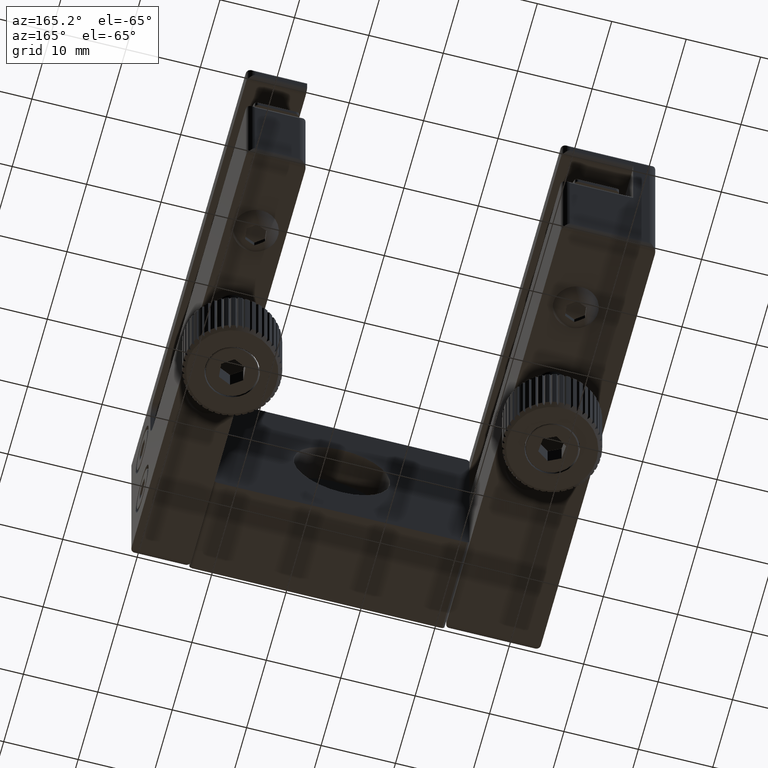
[diagram: clean part render]
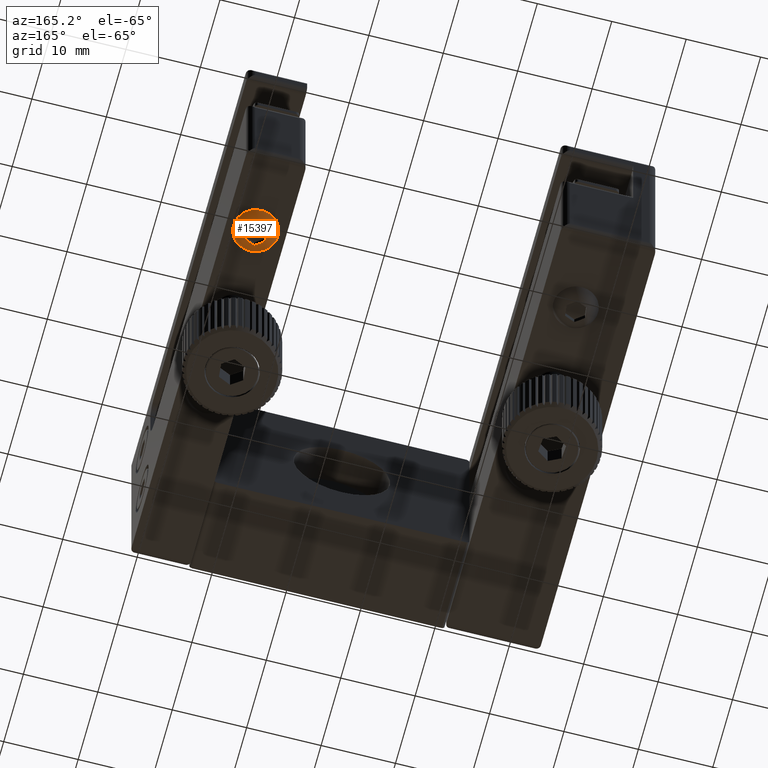
[diagram: same view with one face highlighted and labeled with its STEP entity id]
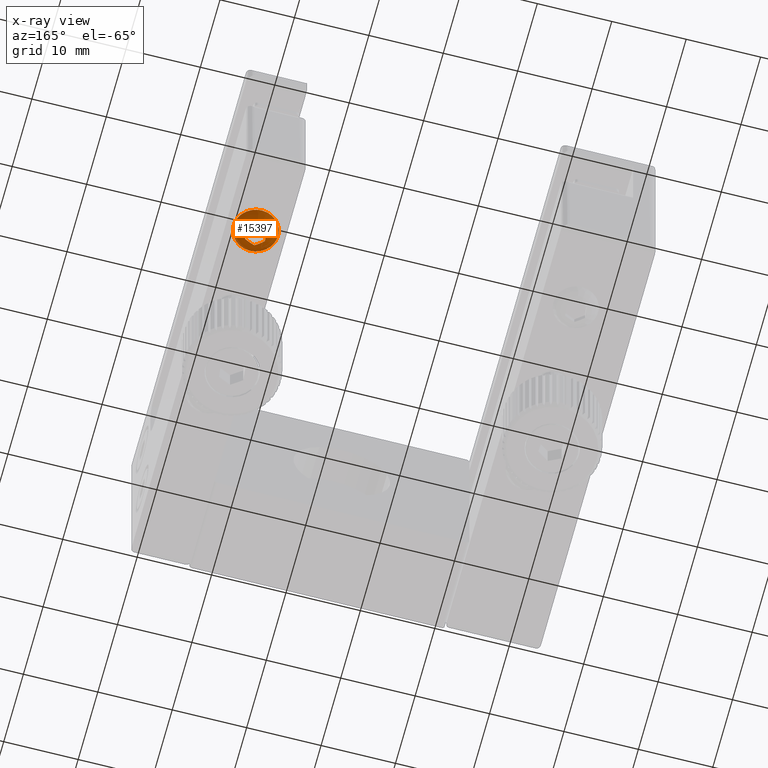
[diagram: x-ray of the same camera — body ghosted, the highlighted face saturated]
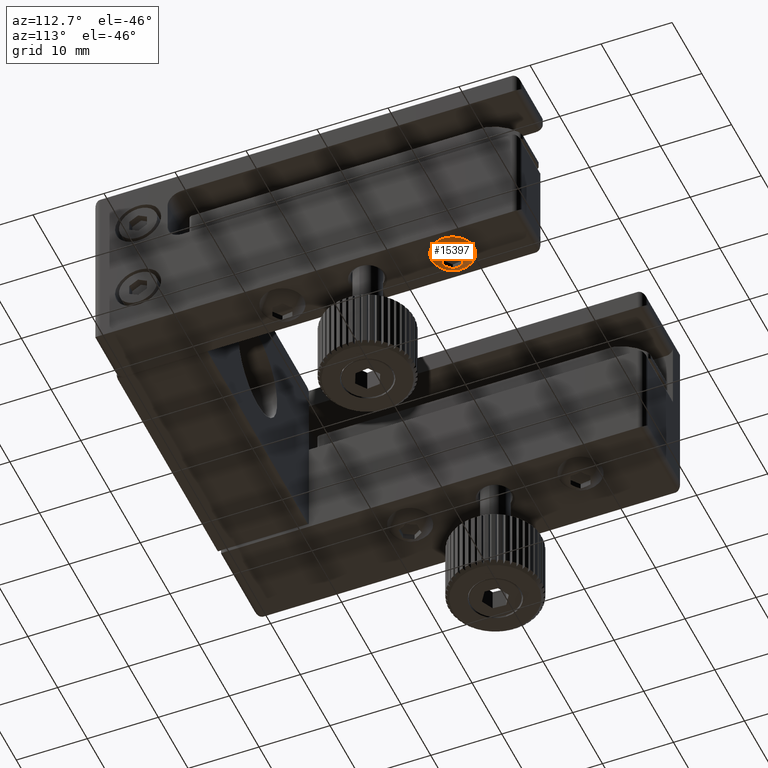
[diagram: same view with one face highlighted and labeled with its STEP entity id]
A machine part, auxiliary view. The second image highlights one B-rep face of the part: STEP entity #15397.
The next image is the same camera in x-ray: the body ghosted, the highlighted face saturated — about 0% of this face is hidden behind the body in this view.
A second angle (auxiliary view) of the same face is appended — the face is thin or edge-on in the first view.
In plain terms, the highlighted toroidal blend (fillet) surface has major radius 0.3867 mm and minor (blend) radius 3.0016 mm.
Its self-contained STEP definition (entity closure, byte-faithful):
#2880 = B_SPLINE_CURVE_WITH_KNOTS ( 'NONE', 3,
 ( #11307, #11298, #11306, #11309, #11310, #11311 ),
 .UNSPECIFIED., .F., .F.,
 ( 4, 2, 4 ),
 ( 2.321339971761600300E-007, 0.0007505610535786988400, 0.001500889973160225400 ),
 .UNSPECIFIED. ) ;
#2883 = B_SPLINE_CURVE_WITH_KNOTS ( 'NONE', 3,
 ( #11313, #11297, #11315, #11316, #11317, #11318 ),
 .UNSPECIFIED., .F., .F.,
 ( 4, 2, 4 ),
 ( 2.321339971838784900E-007, 0.0007505610535785110500, 0.001500889973159838300 ),
 .UNSPECIFIED. ) ;
#2886 = B_SPLINE_CURVE_WITH_KNOTS ( 'NONE', 3,
 ( #11308, #11312, #11321, #11322, #11323, #11324 ),
 .UNSPECIFIED., .F., .F.,
 ( 4, 2, 4 ),
 ( 0.01799585497660051100, 0.01874462994514625200, 0.01949340491369198900 ),
 .UNSPECIFIED. ) ;
#2889 = B_SPLINE_CURVE_WITH_KNOTS ( 'NONE', 3,
 ( #11314, #11320, #11327, #11328, #11329, #11330 ),
 .UNSPECIFIED., .F., .F.,
 ( 4, 2, 4 ),
 ( 2.321339971767755600E-007, 0.0007505610535785079100, 0.001500889973159839000 ),
 .UNSPECIFIED. ) ;
#2892 = B_SPLINE_CURVE_WITH_KNOTS ( 'NONE', 3,
 ( #11319, #11326, #11332, #11333, #11334, #11335 ),
 .UNSPECIFIED., .F., .F.,
 ( 4, 2, 4 ),
 ( 2.321339971802883900E-007, 0.0007505610535783091700, 0.001500889973159438100 ),
 .UNSPECIFIED. ) ;
#2894 = B_SPLINE_CURVE_WITH_KNOTS ( 'NONE', 3,
 ( #11325, #11331, #11338, #11339, #11340, #11341 ),
 .UNSPECIFIED., .F., .F.,
 ( 4, 2, 4 ),
 ( 0.01799585497660115600, 0.01874462994514657800, 0.01949340491369200300 ),
 .UNSPECIFIED. ) ;
#2944 = CARTESIAN_POINT ( 'NONE',  ( 15.85790100145254700, 39.25065930810993100, -14.21092417893698300 ) ) ;
#2947 = CARTESIAN_POINT ( 'NONE',  ( 16.05310175964706000, 40.73790396316849900, -14.21092417893698100 ) ) ;
#2950 = CARTESIAN_POINT ( 'NONE',  ( 14.86271048582098500, 41.65057510613221600, -14.21092417893451900 ) ) ;
#2952 = CARTESIAN_POINT ( 'NONE',  ( 13.47711845380037400, 41.07600159403737900, -14.21092417893697900 ) ) ;
#2953 = CARTESIAN_POINT ( 'NONE',  ( 13.28191769560585200, 39.58875693897879700, -14.21092417893698100 ) ) ;
#2955 = CARTESIAN_POINT ( 'NONE',  ( 14.47230896943194100, 38.67608579601508000, -14.21092417893944300 ) ) ;
#5685 = FACE_OUTER_BOUND ( 'NONE', #12946, .T. ) ;
#5688 = TOROIDAL_SURFACE ( 'NONE', #8379, 0.3867193823692916000, 3.001577696472475400 ) ;
#5689 = FACE_OUTER_BOUND ( 'NONE', #12943, .T. ) ;
#5865 = VERTEX_POINT ( 'NONE', #9441 ) ;
#7908 = CARTESIAN_POINT ( 'NONE',  ( 14.66750972762645900, 40.16333045107364800, -11.42343876473858600 ) ) ;
#7910 = DIRECTION ( 'NONE',  ( 0.0000000000000000000, 0.0000000000000000000, -1.000000000000000000 ) ) ;
#7914 = DIRECTION ( 'NONE',  ( 0.9237280213470681100, 0.3830490080632378300, 0.0000000000000000000 ) ) ;
#8379 = AXIS2_PLACEMENT_3D ( 'NONE', #7908, #7910, #7914 ) ;
#8586 = EDGE_CURVE ( 'NONE', #13436, #13438, #2880, .T. ) ;
#8587 = EDGE_CURVE ( 'NONE', #13434, #13436, #2883, .T. ) ;
#8588 = EDGE_CURVE ( 'NONE', #13438, #13439, #2886, .T. ) ;
#8589 = EDGE_CURVE ( 'NONE', #13439, #13440, #2889, .T. ) ;
#8590 = EDGE_CURVE ( 'NONE', #13440, #13441, #2892, .T. ) ;
#8591 = EDGE_CURVE ( 'NONE', #13441, #13434, #2894, .T. ) ;
#8592 = EDGE_CURVE ( 'NONE', #5865, #5865, #10252, .T. ) ;
#9441 = CARTESIAN_POINT ( 'NONE',  ( 17.43869379166766000, 41.31247747526335700, -12.89999999999999500 ) ) ;
#10252 = CIRCLE ( 'NONE', #15768, 2.999999999999994700 ) ;
#11297 = CARTESIAN_POINT ( 'NONE',  ( 15.89028136405914400, 39.49736696263413900, -14.26061240766815200 ) ) ;
#11298 = CARTESIAN_POINT ( 'NONE',  ( 15.85563684482426600, 40.88930000703172100, -14.26061240766816100 ) ) ;
#11306 = CARTESIAN_POINT ( 'NONE',  ( 15.65756723479007700, 41.04115966977541800, -14.28292376880803600 ) ) ;
#11307 = CARTESIAN_POINT ( 'NONE',  ( 16.05310175964706000, 40.73790396316849900, -14.21092417893698100 ) ) ;
#11308 = CARTESIAN_POINT ( 'NONE',  ( 14.86271048582098500, 41.65057510613221600, -14.21092417893451900 ) ) ;
#11309 = CARTESIAN_POINT ( 'NONE',  ( 15.26044616087835600, 41.34563178108135200, -14.28309420809237200 ) ) ;
#11310 = CARTESIAN_POINT ( 'NONE',  ( 15.06003458731871600, 41.49928702362689100, -14.26057697471693700 ) ) ;
#11311 = CARTESIAN_POINT ( 'NONE',  ( 14.86271048582098500, 41.65057510613221600, -14.21092417893451900 ) ) ;
#11312 = CARTESIAN_POINT ( 'NONE',  ( 14.63409011991699200, 41.55577143843046900, -14.26034760482045800 ) ) ;
#11313 = CARTESIAN_POINT ( 'NONE',  ( 15.85790100145254700, 39.25065930810993100, -14.21092417893698300 ) ) ;
#11314 = CARTESIAN_POINT ( 'NONE',  ( 13.47711845380037400, 41.07600159403737900, -14.21092417893697900 ) ) ;
#11315 = CARTESIAN_POINT ( 'NONE',  ( 15.92276088478822700, 39.74483010801323200, -14.28292376880803300 ) ) ;
#11316 = CARTESIAN_POINT ( 'NONE',  ( 15.98788093096716700, 40.24098310205175700, -14.28309420809238600 ) ) ;
#11317 = CARTESIAN_POINT ( 'NONE',  ( 16.02074448765643300, 40.49137223723952400, -14.26057697471696900 ) ) ;
#11318 = CARTESIAN_POINT ( 'NONE',  ( 16.05310175964706000, 40.73790396316849900, -14.21092417893698100 ) ) ;
#11319 = CARTESIAN_POINT ( 'NONE',  ( 13.28191769560585200, 39.58875693897879700, -14.21092417893698100 ) ) ;
#11320 = CARTESIAN_POINT ( 'NONE',  ( 13.44473809119377900, 40.82929393951317100, -14.26061240766815000 ) ) ;
#11321 = CARTESIAN_POINT ( 'NONE',  ( 14.40172104693482800, 41.45941326713608500, -14.28315987314332100 ) ) ;
#11322 = CARTESIAN_POINT ( 'NONE',  ( 13.93361389140600100, 41.26529987288056100, -14.28285712285328800 ) ) ;
#11323 = CARTESIAN_POINT ( 'NONE',  ( 13.70327118982823600, 41.16978199173488000, -14.25981414962340200 ) ) ;
#11324 = CARTESIAN_POINT ( 'NONE',  ( 13.47711845380037400, 41.07600159403737900, -14.21092417893697900 ) ) ;
#11325 = CARTESIAN_POINT ( 'NONE',  ( 14.47230896943194100, 38.67608579601508000, -14.21092417893944300 ) ) ;
#11326 = CARTESIAN_POINT ( 'NONE',  ( 13.47938261042853500, 39.43736089511568100, -14.26061240766813400 ) ) ;
#11327 = CARTESIAN_POINT ( 'NONE',  ( 13.41225857046469200, 40.58183079413408500, -14.28292376880802900 ) ) ;
#11328 = CARTESIAN_POINT ( 'NONE',  ( 13.34713852428574300, 40.08567780009553900, -14.28309420809238400 ) ) ;
#11329 = CARTESIAN_POINT ( 'NONE',  ( 13.31427496759648000, 39.83528866490777900, -14.26057697471696900 ) ) ;
#11330 = CARTESIAN_POINT ( 'NONE',  ( 13.28191769560585200, 39.58875693897879700, -14.21092417893698100 ) ) ;
#11331 = CARTESIAN_POINT ( 'NONE',  ( 14.70092933533641900, 38.77088946371703300, -14.26034760482051700 ) ) ;
#11332 = CARTESIAN_POINT ( 'NONE',  ( 13.67745222046262500, 39.28550123237205600, -14.28292376880801500 ) ) ;
#11333 = CARTESIAN_POINT ( 'NONE',  ( 14.07457329437413800, 38.98102912106627100, -14.28309420809239500 ) ) ;
#11334 = CARTESIAN_POINT ( 'NONE',  ( 14.27498486793366600, 38.82737387852082400, -14.26057697471701100 ) ) ;
#11335 = CARTESIAN_POINT ( 'NONE',  ( 14.47230896943194100, 38.67608579601508000, -14.21092417893944300 ) ) ;
#11338 = CARTESIAN_POINT ( 'NONE',  ( 14.93329840831848700, 38.86724763501138800, -14.28315987314334200 ) ) ;
#11339 = CARTESIAN_POINT ( 'NONE',  ( 15.40140556384710800, 39.06136102926682700, -14.28285712285327100 ) ) ;
#11340 = CARTESIAN_POINT ( 'NONE',  ( 15.63174826542477700, 39.15687891041246600, -14.25981414962338100 ) ) ;
#11341 = CARTESIAN_POINT ( 'NONE',  ( 15.85790100145254700, 39.25065930810993100, -14.21092417893698300 ) ) ;
#11342 = CARTESIAN_POINT ( 'NONE',  ( 14.66750972762645900, 40.16333045107364800, -12.89999999999999500 ) ) ;
#11343 = DIRECTION ( 'NONE',  ( 0.0000000000000000000, 0.0000000000000000000, -1.000000000000000000 ) ) ;
#11344 = DIRECTION ( 'NONE',  ( 0.9237280213470685500, 0.3830490080632370500, 0.0000000000000000000 ) ) ;
#12691 = ORIENTED_EDGE ( 'NONE', *, *, #8587, .T. ) ;
#12692 = ORIENTED_EDGE ( 'NONE', *, *, #8586, .T. ) ;
#12693 = ORIENTED_EDGE ( 'NONE', *, *, #8588, .T. ) ;
#12694 = ORIENTED_EDGE ( 'NONE', *, *, #8589, .T. ) ;
#12695 = ORIENTED_EDGE ( 'NONE', *, *, #8590, .T. ) ;
#12696 = ORIENTED_EDGE ( 'NONE', *, *, #8591, .T. ) ;
#12697 = ORIENTED_EDGE ( 'NONE', *, *, #8592, .T. ) ;
#12943 = EDGE_LOOP ( 'NONE', ( #12697 ) ) ;
#12946 = EDGE_LOOP ( 'NONE', ( #12691, #12692, #12693, #12694, #12695, #12696 ) ) ;
#13434 = VERTEX_POINT ( 'NONE', #2944 ) ;
#13436 = VERTEX_POINT ( 'NONE', #2947 ) ;
#13438 = VERTEX_POINT ( 'NONE', #2950 ) ;
#13439 = VERTEX_POINT ( 'NONE', #2952 ) ;
#13440 = VERTEX_POINT ( 'NONE', #2953 ) ;
#13441 = VERTEX_POINT ( 'NONE', #2955 ) ;
#15397 = ADVANCED_FACE ( 'NONE', ( #5685, #5689 ), #5688, .T. ) ;
#15768 = AXIS2_PLACEMENT_3D ( 'NONE', #11342, #11343, #11344 ) ;